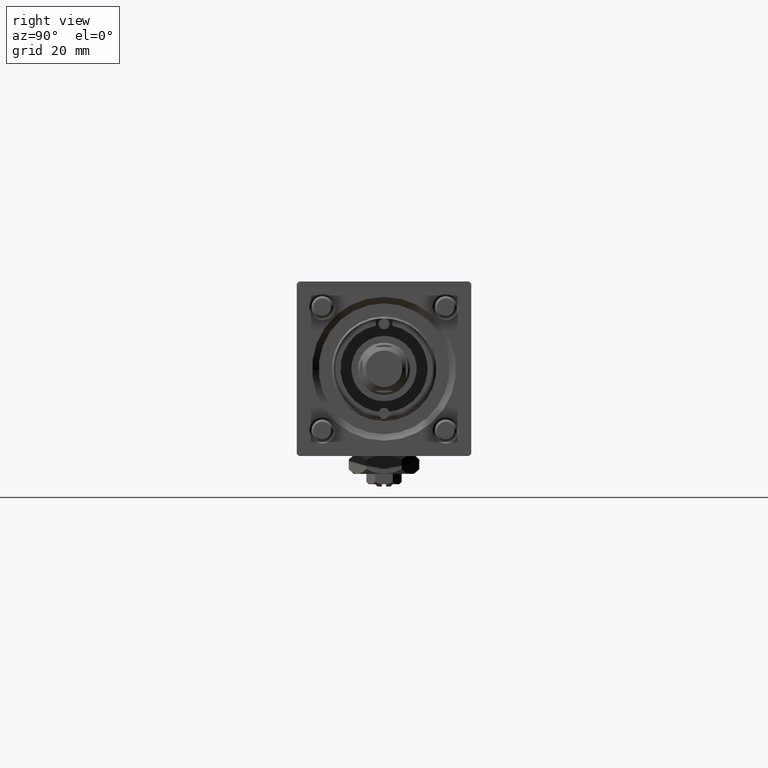
[diagram: clean part render]
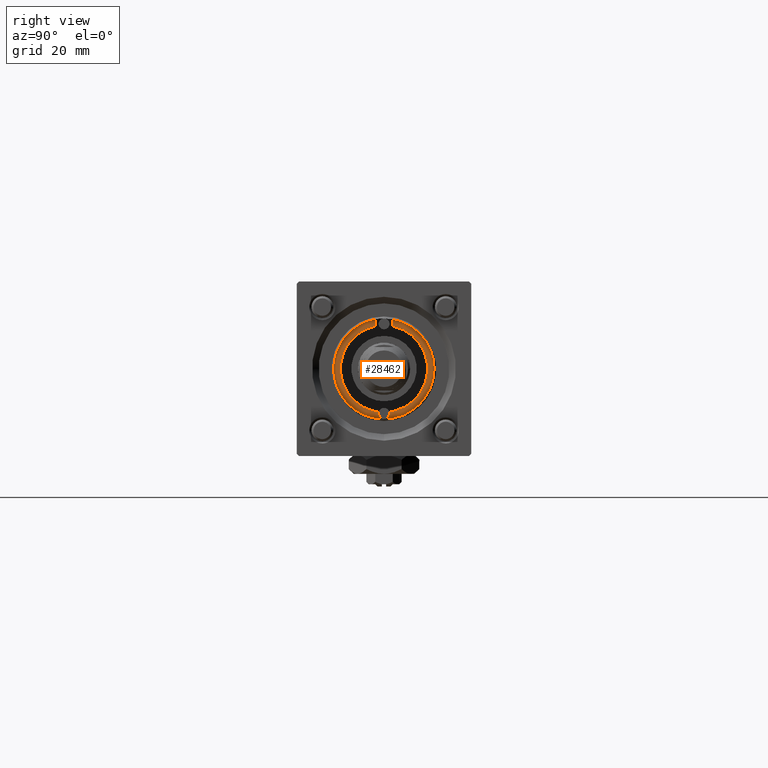
[diagram: same view with one face highlighted and labeled with its STEP entity id]
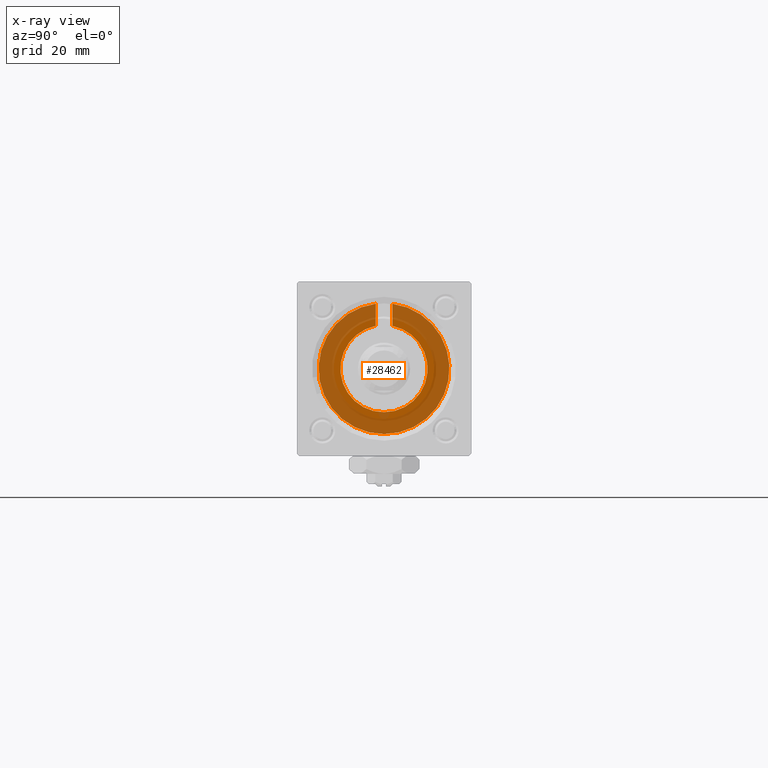
[diagram: x-ray of the same camera — body ghosted, the highlighted face saturated]
A machine part, right view. The second image highlights one B-rep face of the part: STEP entity #28462.
The next image is the same camera in x-ray: the body ghosted, the highlighted face saturated — about 75% of this face is hidden behind the body in this view.
In plain terms, the highlighted planar face has unit normal (1, 0, 0).
Its self-contained STEP definition (entity closure, byte-faithful):
#544 = CIRCLE ( 'NONE', #6252, 9.999999999999998224 ) ;
#661 = LINE ( 'NONE', #17675, #30691 ) ;
#1421 = EDGE_CURVE ( 'NONE', #24086, #30744, #544, .T. ) ;
#1878 = CARTESIAN_POINT ( 'NONE',  ( 90.30000000000001137, 0.000000000000000000, 0.000000000000000000 ) ) ;
#2241 = EDGE_CURVE ( 'NONE', #53892, #11597, #28867, .T. ) ;
#2772 = DIRECTION ( 'NONE',  ( 0.000000000000000000, 0.000000000000000000, -1.000000000000000000 ) ) ;
#4788 = CARTESIAN_POINT ( 'NONE',  ( 90.30000000000001137, 0.000000000000000000, 0.000000000000000000 ) ) ;
#5454 = DIRECTION ( 'NONE',  ( 1.000000000000000000, 0.000000000000000000, 0.000000000000000000 ) ) ;
#5657 = EDGE_CURVE ( 'NONE', #14713, #21060, #54098, .T. ) ;
#6158 = CARTESIAN_POINT ( 'NONE',  ( 90.30000000000001137, -1.899052395280420136, 42.80000000000000426 ) ) ;
#6243 = CARTESIAN_POINT ( 'NONE',  ( 90.30000000000001137, -1.899052395280420136, 9.818024241158690657 ) ) ;
#6252 = AXIS2_PLACEMENT_3D ( 'NONE', #52088, #29961, #2772 ) ;
#6652 = ORIENTED_EDGE ( 'NONE', *, *, #5657, .T. ) ;
#8970 = DIRECTION ( 'NONE',  ( 1.000000000000000000, 0.000000000000000000, 0.000000000000000000 ) ) ;
#9556 = DIRECTION ( 'NONE',  ( 0.000000000000000000, 0.000000000000000000, -1.000000000000000000 ) ) ;
#9687 = AXIS2_PLACEMENT_3D ( 'NONE', #1878, #5454, #37428 ) ;
#11597 = VERTEX_POINT ( 'NONE', #46175 ) ;
#12195 = DIRECTION ( 'NONE',  ( 1.000000000000000000, 0.000000000000000000, 0.000000000000000000 ) ) ;
#13204 = DIRECTION ( 'NONE',  ( 0.000000000000000000, 0.000000000000000000, -1.000000000000000000 ) ) ;
#13364 = CARTESIAN_POINT ( 'NONE',  ( 90.30000000000001137, 1.899052395280416805, 14.87930105885285670 ) ) ;
#13909 = VECTOR ( 'NONE', #42624, 1000.000000000000000 ) ;
#14713 = VERTEX_POINT ( 'NONE', #22475 ) ;
#17675 = CARTESIAN_POINT ( 'NONE',  ( 90.30000000000001137, 1.899052395280416805, 42.80000000000000426 ) ) ;
#18215 = CIRCLE ( 'NONE', #25849, 15.00000000000000000 ) ;
#18450 = ORIENTED_EDGE ( 'NONE', *, *, #24969, .T. ) ;
#21060 = VERTEX_POINT ( 'NONE', #13364 ) ;
#21862 = ORIENTED_EDGE ( 'NONE', *, *, #1421, .F. ) ;
#22475 = CARTESIAN_POINT ( 'NONE',  ( 90.30000000000001137, 0.000000000000000000, -15.00000000000000000 ) ) ;
#23298 = FACE_OUTER_BOUND ( 'NONE', #46130, .T. ) ;
#23765 = DIRECTION ( 'NONE',  ( 1.000000000000000000, 0.000000000000000000, 0.000000000000000000 ) ) ;
#24064 = CARTESIAN_POINT ( 'NONE',  ( 90.30000000000001137, 0.000000000000000000, 0.000000000000000000 ) ) ;
#24086 = VERTEX_POINT ( 'NONE', #33505 ) ;
#24969 = EDGE_CURVE ( 'NONE', #11597, #14713, #18215, .T. ) ;
#25849 = AXIS2_PLACEMENT_3D ( 'NONE', #31008, #12195, #48647 ) ;
#27302 = ORIENTED_EDGE ( 'NONE', *, *, #2241, .T. ) ;
#28462 = ADVANCED_FACE ( 'NONE', ( #23298 ), #40943, .T. ) ;
#28867 = LINE ( 'NONE', #6158, #13909 ) ;
#29413 = EDGE_CURVE ( 'NONE', #53892, #24086, #44030, .T. ) ;
#29961 = DIRECTION ( 'NONE',  ( 1.000000000000000000, 0.000000000000000000, 0.000000000000000000 ) ) ;
#30691 = VECTOR ( 'NONE', #13204, 1000.000000000000000 ) ;
#30744 = VERTEX_POINT ( 'NONE', #38160 ) ;
#31008 = CARTESIAN_POINT ( 'NONE',  ( 90.30000000000001137, 0.000000000000000000, 0.000000000000000000 ) ) ;
#33505 = CARTESIAN_POINT ( 'NONE',  ( 90.30000000000001137, 0.000000000000000000, -9.999999999999998224 ) ) ;
#37428 = DIRECTION ( 'NONE',  ( 0.000000000000000000, 0.000000000000000000, -1.000000000000000000 ) ) ;
#38160 = CARTESIAN_POINT ( 'NONE',  ( 90.30000000000001137, 1.899052395280416805, 9.818024241158690657 ) ) ;
#40943 = PLANE ( 'NONE',  #52606 ) ;
#41999 = DIRECTION ( 'NONE',  ( 0.000000000000000000, 0.000000000000000000, -1.000000000000000000 ) ) ;
#42624 = DIRECTION ( 'NONE',  ( -0.000000000000000000, -0.000000000000000000, 1.000000000000000000 ) ) ;
#44030 = CIRCLE ( 'NONE', #9687, 9.999999999999998224 ) ;
#45146 = EDGE_CURVE ( 'NONE', #21060, #30744, #661, .T. ) ;
#46130 = EDGE_LOOP ( 'NONE', ( #52387, #27302, #18450, #6652, #53089, #21862 ) ) ;
#46175 = CARTESIAN_POINT ( 'NONE',  ( 90.30000000000001137, -1.899052395280420136, 14.87930105885285670 ) ) ;
#48647 = DIRECTION ( 'NONE',  ( 0.000000000000000000, 0.000000000000000000, -1.000000000000000000 ) ) ;
#52088 = CARTESIAN_POINT ( 'NONE',  ( 90.30000000000001137, 0.000000000000000000, 0.000000000000000000 ) ) ;
#52387 = ORIENTED_EDGE ( 'NONE', *, *, #29413, .F. ) ;
#52606 = AXIS2_PLACEMENT_3D ( 'NONE', #4788, #8970, #9556 ) ;
#53089 = ORIENTED_EDGE ( 'NONE', *, *, #45146, .T. ) ;
#53892 = VERTEX_POINT ( 'NONE', #6243 ) ;
#54098 = CIRCLE ( 'NONE', #58877, 15.00000000000000000 ) ;
#58877 = AXIS2_PLACEMENT_3D ( 'NONE', #24064, #23765, #41999 ) ;